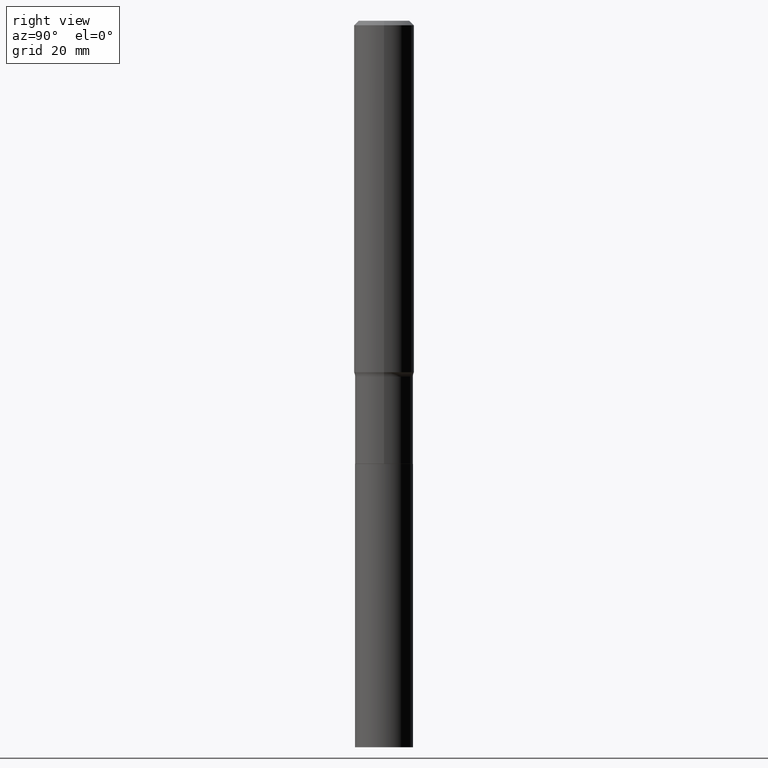
[diagram: clean part render]
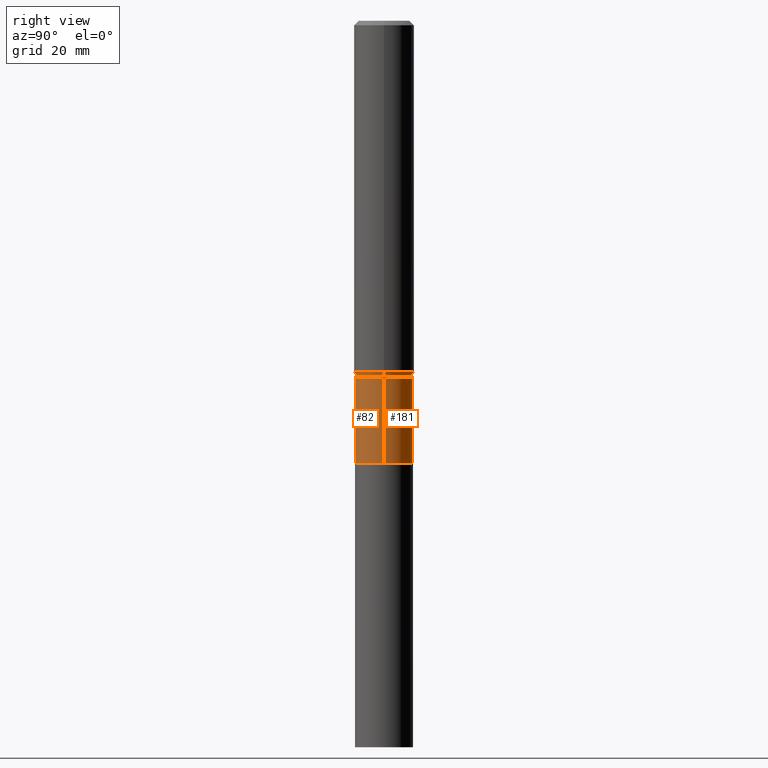
[diagram: same view with one multi-face feature highlighted, each face labeled with its STEP entity id]
A machine part, right view. The highlighted faces form ONE feature: a constant-radius fillet chain: 2 tangent blend faces with common blend radius 5.8001 mm. The faces share edges in the B-rep.
Their STEP definitions:
[1] entity #181 (Cylinder):
#17 = DIRECTION ( 'NONE',  ( -2.445468806185136877E-29, 3.491481338843145188E-15, 1.000000000000000000 ) ) ;
#22 = CARTESIAN_POINT ( 'NONE',  ( 0.2283499999999999697, -1.594559527449658749E-15, 1.113474966753001794E-29 ) ) ;
#39 = CARTESIAN_POINT ( 'NONE',  ( 0.2283499999999999142, -1.135743964712286205E-14, -2.796200000000000241 ) ) ;
#52 = VERTEX_POINT ( 'NONE', #259 ) ;
#66 = DIRECTION ( 'NONE',  ( -2.445468806185136597E-29, 3.491481338843145583E-15, 1.000000000000000000 ) ) ;
#70 = EDGE_CURVE ( 'NONE', #449, #226, #217, .T. ) ;
#72 = AXIS2_PLACEMENT_3D ( 'NONE', #391, #66, #284 ) ;
#75 = EDGE_CURVE ( 'NONE', #52, #449, #309, .T. ) ;
#81 = CARTESIAN_POINT ( 'NONE',  ( -0.2283499999999999142, -9.336188141118792014E-15, -2.796200000000000241 ) ) ;
#93 = VECTOR ( 'NONE', #17, 39.37007874015748143 ) ;
#100 = LINE ( 'NONE', #22, #93 ) ;
#129 = EDGE_LOOP ( 'NONE', ( #313, #240, #328, #397 ) ) ;
#157 = CYLINDRICAL_SURFACE ( 'NONE', #280, 0.2283499999999999697 ) ;
#163 = VERTEX_POINT ( 'NONE', #39 ) ;
#164 = DIRECTION ( 'NONE',  ( 1.000000000000000000, -6.982962677686266711E-15, 4.876176775795935793E-29 ) ) ;
#166 = CIRCLE ( 'NONE', #392, 0.2283499999999999142 ) ;
#181 = ADVANCED_FACE ( 'NONE', ( #338 ), #157, .T. ) ;
#192 = DIRECTION ( 'NONE',  ( 1.000000000000000000, -6.982962677686265133E-15, 0.000000000000000000 ) ) ;
#193 = VECTOR ( 'NONE', #418, 39.37007874015748143 ) ;
#217 = LINE ( 'NONE', #385, #193 ) ;
#226 = VERTEX_POINT ( 'NONE', #81 ) ;
#227 = EDGE_CURVE ( 'NONE', #163, #226, #166, .T. ) ;
#240 = ORIENTED_EDGE ( 'NONE', *, *, #70, .T. ) ;
#241 = CARTESIAN_POINT ( 'NONE',  ( 0.000000000000000000, 0.000000000000000000, 0.000000000000000000 ) ) ;
#259 = CARTESIAN_POINT ( 'NONE',  ( 0.2283499999999999974, -1.374910436423041975E-14, -3.481199999999999850 ) ) ;
#266 = CARTESIAN_POINT ( 'NONE',  ( 6.838019875854878525E-29, -9.762880119673204678E-15, -2.796200000000000241 ) ) ;
#271 = DIRECTION ( 'NONE',  ( -2.445468806185136597E-29, 3.491481338843145583E-15, 1.000000000000000000 ) ) ;
#277 = CARTESIAN_POINT ( 'NONE',  ( -0.2283499999999999974, -9.336188141118792014E-15, -3.481199999999999850 ) ) ;
#280 = AXIS2_PLACEMENT_3D ( 'NONE', #241, #271, #164 ) ;
#284 = DIRECTION ( 'NONE',  ( 1.000000000000000000, -6.982962677686270655E-15, 0.000000000000000000 ) ) ;
#309 = CIRCLE ( 'NONE', #72, 0.2283499999999999974 ) ;
#313 = ORIENTED_EDGE ( 'NONE', *, *, #75, .T. ) ;
#328 = ORIENTED_EDGE ( 'NONE', *, *, #227, .F. ) ;
#338 = FACE_OUTER_BOUND ( 'NONE', #129, .T. ) ;
#372 = DIRECTION ( 'NONE',  ( -2.445468806185136597E-29, 3.491481338843145583E-15, 1.000000000000000000 ) ) ;
#385 = CARTESIAN_POINT ( 'NONE',  ( -0.2283499999999999697, 1.622524337108188559E-15, -1.123238827859707655E-29 ) ) ;
#391 = CARTESIAN_POINT ( 'NONE',  ( 8.513166008091697049E-29, -1.215454483678075923E-14, -3.481199999999999850 ) ) ;
#392 = AXIS2_PLACEMENT_3D ( 'NONE', #266, #372, #192 ) ;
#397 = ORIENTED_EDGE ( 'NONE', *, *, #437, .F. ) ;
#418 = DIRECTION ( 'NONE',  ( -2.445468806185136877E-29, 3.491481338843145188E-15, 1.000000000000000000 ) ) ;
#437 = EDGE_CURVE ( 'NONE', #52, #163, #100, .T. ) ;
#449 = VERTEX_POINT ( 'NONE', #277 ) ;
[2] entity #82 (Cylinder):
#17 = DIRECTION ( 'NONE',  ( -2.445468806185136877E-29, 3.491481338843145188E-15, 1.000000000000000000 ) ) ;
#22 = CARTESIAN_POINT ( 'NONE',  ( 0.2283499999999999697, -1.594559527449658749E-15, 1.113474966753001794E-29 ) ) ;
#39 = CARTESIAN_POINT ( 'NONE',  ( 0.2283499999999999142, -1.135743964712286205E-14, -2.796200000000000241 ) ) ;
#42 = DIRECTION ( 'NONE',  ( -2.445468806185136597E-29, 3.491481338843145583E-15, 1.000000000000000000 ) ) ;
#51 = AXIS2_PLACEMENT_3D ( 'NONE', #434, #42, #440 ) ;
#52 = VERTEX_POINT ( 'NONE', #259 ) ;
#60 = DIRECTION ( 'NONE',  ( -2.445468806185136597E-29, 3.491481338843145583E-15, 1.000000000000000000 ) ) ;
#70 = EDGE_CURVE ( 'NONE', #449, #226, #217, .T. ) ;
#78 = EDGE_LOOP ( 'NONE', ( #233, #244, #403, #316 ) ) ;
#81 = CARTESIAN_POINT ( 'NONE',  ( -0.2283499999999999142, -9.336188141118792014E-15, -2.796200000000000241 ) ) ;
#82 = ADVANCED_FACE ( 'NONE', ( #255 ), #390, .T. ) ;
#93 = VECTOR ( 'NONE', #17, 39.37007874015748143 ) ;
#100 = LINE ( 'NONE', #22, #93 ) ;
#114 = AXIS2_PLACEMENT_3D ( 'NONE', #314, #381, #457 ) ;
#163 = VERTEX_POINT ( 'NONE', #39 ) ;
#193 = VECTOR ( 'NONE', #418, 39.37007874015748143 ) ;
#217 = LINE ( 'NONE', #385, #193 ) ;
#226 = VERTEX_POINT ( 'NONE', #81 ) ;
#233 = ORIENTED_EDGE ( 'NONE', *, *, #70, .F. ) ;
#236 = CIRCLE ( 'NONE', #51, 0.2283499999999999142 ) ;
#244 = ORIENTED_EDGE ( 'NONE', *, *, #426, .T. ) ;
#255 = FACE_OUTER_BOUND ( 'NONE', #78, .T. ) ;
#259 = CARTESIAN_POINT ( 'NONE',  ( 0.2283499999999999974, -1.374910436423041975E-14, -3.481199999999999850 ) ) ;
#260 = EDGE_CURVE ( 'NONE', #226, #163, #236, .T. ) ;
#277 = CARTESIAN_POINT ( 'NONE',  ( -0.2283499999999999974, -9.336188141118792014E-15, -3.481199999999999850 ) ) ;
#314 = CARTESIAN_POINT ( 'NONE',  ( 8.513166008091697049E-29, -1.215454483678075923E-14, -3.481199999999999850 ) ) ;
#316 = ORIENTED_EDGE ( 'NONE', *, *, #260, .F. ) ;
#351 = CIRCLE ( 'NONE', #114, 0.2283499999999999974 ) ;
#359 = CARTESIAN_POINT ( 'NONE',  ( 0.000000000000000000, 0.000000000000000000, 0.000000000000000000 ) ) ;
#381 = DIRECTION ( 'NONE',  ( -2.445468806185136597E-29, 3.491481338843145583E-15, 1.000000000000000000 ) ) ;
#385 = CARTESIAN_POINT ( 'NONE',  ( -0.2283499999999999697, 1.622524337108188559E-15, -1.123238827859707655E-29 ) ) ;
#390 = CYLINDRICAL_SURFACE ( 'NONE', #451, 0.2283499999999999697 ) ;
#403 = ORIENTED_EDGE ( 'NONE', *, *, #437, .T. ) ;
#418 = DIRECTION ( 'NONE',  ( -2.445468806185136877E-29, 3.491481338843145188E-15, 1.000000000000000000 ) ) ;
#426 = EDGE_CURVE ( 'NONE', #449, #52, #351, .T. ) ;
#434 = CARTESIAN_POINT ( 'NONE',  ( 6.838019875854878525E-29, -9.762880119673204678E-15, -2.796200000000000241 ) ) ;
#437 = EDGE_CURVE ( 'NONE', #52, #163, #100, .T. ) ;
#440 = DIRECTION ( 'NONE',  ( 1.000000000000000000, -6.982962677686265133E-15, 0.000000000000000000 ) ) ;
#449 = VERTEX_POINT ( 'NONE', #277 ) ;
#451 = AXIS2_PLACEMENT_3D ( 'NONE', #359, #60, #456 ) ;
#456 = DIRECTION ( 'NONE',  ( 1.000000000000000000, -6.982962677686266711E-15, 4.876176775795935793E-29 ) ) ;
#457 = DIRECTION ( 'NONE',  ( 1.000000000000000000, -6.982962677686270655E-15, 0.000000000000000000 ) ) ;